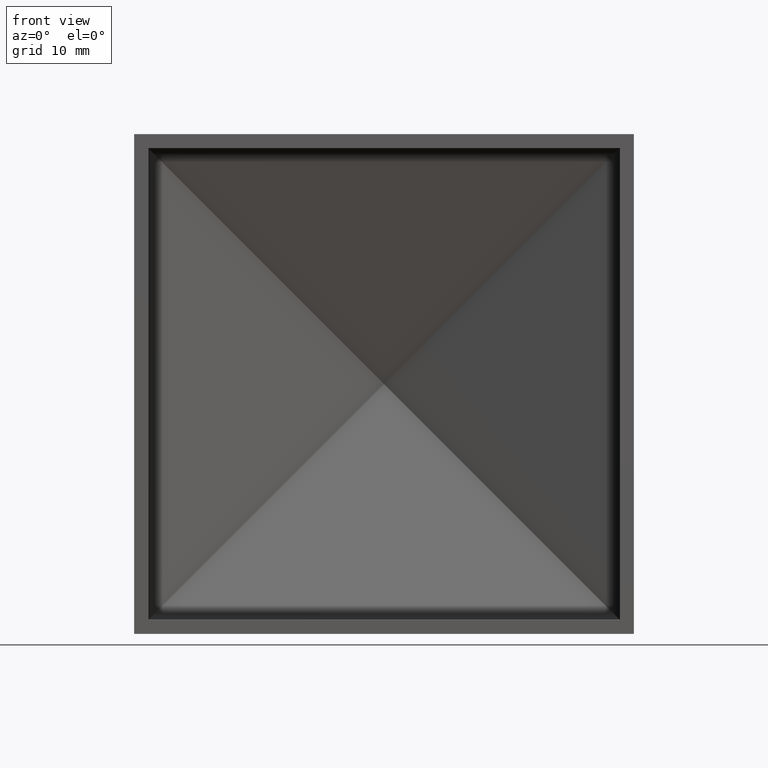
[diagram: clean part render]
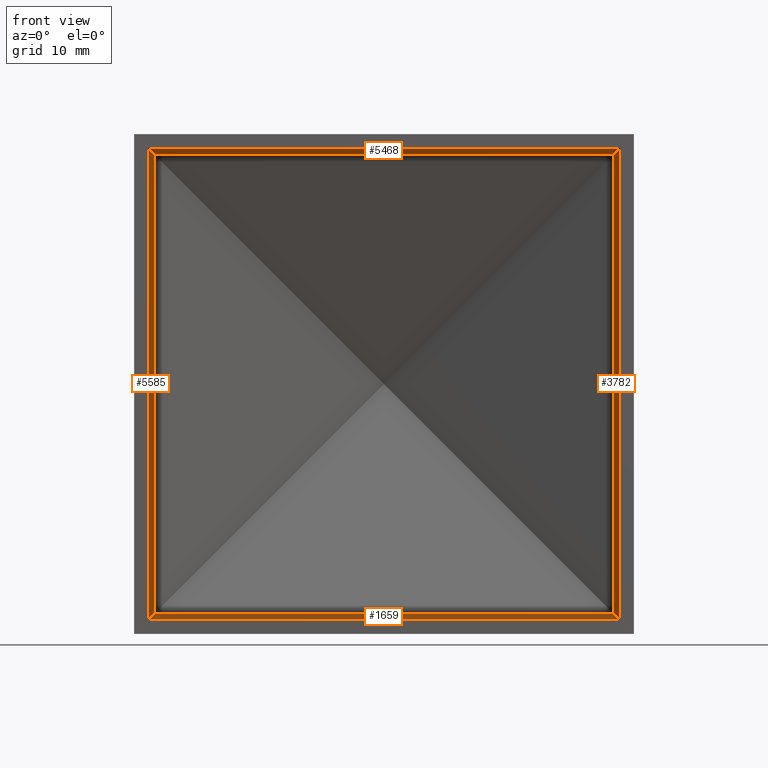
[diagram: same view with one multi-face feature highlighted, each face labeled with its STEP entity id]
A machine part, front view. The highlighted faces form ONE feature: a constant-radius fillet chain: 4 tangent blend faces with common blend radius 1 mm. The faces share edges in the B-rep.
Their STEP definitions:
[1] entity #1659 (Cylinder):
#34 = CARTESIAN_POINT ( 'NONE',  ( 24.35327022988073200, 9.207260954021602800, -24.35327022988073500 ) ) ;
#1659 = ADVANCED_FACE ( 'NONE', ( #12717 ), #8384, .F. ) ;
#2142 = EDGE_LOOP ( 'NONE', ( #11558, #5322, #9225, #8332 ) ) ;
#2817 = CARTESIAN_POINT ( 'NONE',  ( -24.35327022988072100, 9.207260954021604600, -24.35327022988071000 ) ) ;
#3187 =( BOUNDED_CURVE ( )  B_SPLINE_CURVE ( 3, ( #11447, #12555, #4276, #9355 ),
 .UNSPECIFIED., .F., .F. ) 
 B_SPLINE_CURVE_WITH_KNOTS ( ( 4, 4 ),
 ( 3.141592653589793100, 4.351324550702121200 ),
 .UNSPECIFIED. ) 
 CURVE ( )  GEOMETRIC_REPRESENTATION_ITEM ( )  RATIONAL_B_SPLINE_CURVE ( ( 1.000000000000000000, 0.8817188890797189600, 0.8817188890797189600, 1.000000000000000000 ) ) 
 REPRESENTATION_ITEM ( '' )  );
#3276 = DIRECTION ( 'NONE',  ( 0.0000000000000000000, 0.0000000000000000000, -1.000000000000000000 ) ) ;
#3362 = EDGE_CURVE ( 'NONE', #12059, #8027, #3187, .T. ) ;
#3801 = CARTESIAN_POINT ( 'NONE',  ( 24.99999999999999300, 8.271739631613602500, -25.00000000000000000 ) ) ;
#4276 = CARTESIAN_POINT ( 'NONE',  ( -24.75550417178340400, 9.055369945534446100, -24.75550417178338900 ) ) ;
#4525 = CARTESIAN_POINT ( 'NONE',  ( 25.00000000000000000, 8.701696632344857500, -25.00000000000000700 ) ) ;
#5322 = ORIENTED_EDGE ( 'NONE', *, *, #9037, .T. ) ;
#5426 = DIRECTION ( 'NONE',  ( 1.000000000000000000, 0.0000000000000000000, -0.0000000000000000000 ) ) ;
#6038 = LINE ( 'NONE', #8451, #8227 ) ;
#6303 = VERTEX_POINT ( 'NONE', #34 ) ;
#6408 = DIRECTION ( 'NONE',  ( 1.000000000000000000, -0.0000000000000000000, -4.440892098500625200E-016 ) ) ;
#6451 = CARTESIAN_POINT ( 'NONE',  ( 24.35327022988073200, 9.207260954021602800, -24.35327022988073500 ) ) ;
#6652 = AXIS2_PLACEMENT_3D ( 'NONE', #9434, #6408, #3276 ) ;
#7239 = DIRECTION ( 'NONE',  ( 1.000000000000000000, -0.0000000000000000000, -4.440892098500625200E-016 ) ) ;
#8027 = VERTEX_POINT ( 'NONE', #2817 ) ;
#8227 = VECTOR ( 'NONE', #5426, 1000.000000000000000 ) ;
#8332 = ORIENTED_EDGE ( 'NONE', *, *, #11121, .F. ) ;
#8384 = CYLINDRICAL_SURFACE ( 'NONE', #6652, 1.000000000000000900 ) ;
#8386 = CARTESIAN_POINT ( 'NONE',  ( -25.00000000000000000, 8.271739631613602500, -24.99999999999998900 ) ) ;
#8451 = CARTESIAN_POINT ( 'NONE',  ( -26.50000000000000400, 8.271739631613602500, -24.99999999999999300 ) ) ;
#9037 = EDGE_CURVE ( 'NONE', #12059, #9210, #6038, .T. ) ;
#9210 = VERTEX_POINT ( 'NONE', #3801 ) ;
#9225 = ORIENTED_EDGE ( 'NONE', *, *, #9646, .F. ) ;
#9355 = CARTESIAN_POINT ( 'NONE',  ( -24.35327022988072100, 9.207260954021604600, -24.35327022988071000 ) ) ;
#9434 = CARTESIAN_POINT ( 'NONE',  ( -26.50000000000002800, 8.271739631613602500, -23.99999999999998600 ) ) ;
#9604 = CARTESIAN_POINT ( 'NONE',  ( 24.75550417178340700, 9.055369945534446100, -24.75550417178341400 ) ) ;
#9646 = EDGE_CURVE ( 'NONE', #6303, #9210, #13183, .T. ) ;
#11121 = EDGE_CURVE ( 'NONE', #8027, #6303, #12843, .T. ) ;
#11447 = CARTESIAN_POINT ( 'NONE',  ( -25.00000000000000000, 8.271739631613602500, -24.99999999999998900 ) ) ;
#11558 = ORIENTED_EDGE ( 'NONE', *, *, #3362, .F. ) ;
#12059 = VERTEX_POINT ( 'NONE', #8386 ) ;
#12414 = CARTESIAN_POINT ( 'NONE',  ( -26.50000000000002800, 9.207260954021604600, -24.35327022988071000 ) ) ;
#12551 = CARTESIAN_POINT ( 'NONE',  ( 24.99999999999999300, 8.271739631613602500, -25.00000000000000000 ) ) ;
#12555 = CARTESIAN_POINT ( 'NONE',  ( -24.99999999999999300, 8.701696632344859200, -24.99999999999998600 ) ) ;
#12717 = FACE_OUTER_BOUND ( 'NONE', #2142, .T. ) ;
#12843 = LINE ( 'NONE', #12414, #13165 ) ;
#13165 = VECTOR ( 'NONE', #7239, 1000.000000000000000 ) ;
#13183 =( BOUNDED_CURVE ( )  B_SPLINE_CURVE ( 3, ( #6451, #9604, #4525, #12551 ),
 .UNSPECIFIED., .F., .T. ) 
 B_SPLINE_CURVE_WITH_KNOTS ( ( 4, 4 ),
 ( 1.931860756477468400, 3.141592653589793100 ),
 .UNSPECIFIED. ) 
 CURVE ( )  GEOMETRIC_REPRESENTATION_ITEM ( )  RATIONAL_B_SPLINE_CURVE ( ( 1.000000000000000000, 0.8817188890797196300, 0.8817188890797196300, 1.000000000000000000 ) ) 
 REPRESENTATION_ITEM ( '' )  );
[2] entity #3782 (Cylinder):
#34 = CARTESIAN_POINT ( 'NONE',  ( 24.35327022988073200, 9.207260954021602800, -24.35327022988073500 ) ) ;
#588 = CYLINDRICAL_SURFACE ( 'NONE', #3509, 1.000000000000000900 ) ;
#1096 = CARTESIAN_POINT ( 'NONE',  ( 25.00000000000000000, 8.271739631613602500, 24.99999999999999600 ) ) ;
#2007 = VERTEX_POINT ( 'NONE', #1096 ) ;
#2630 = CARTESIAN_POINT ( 'NONE',  ( 25.00000000000000000, 8.271739631613602500, 24.99999999999999600 ) ) ;
#2670 = DIRECTION ( 'NONE',  ( -0.0000000000000000000, -0.0000000000000000000, 1.000000000000000000 ) ) ;
#2895 = CARTESIAN_POINT ( 'NONE',  ( 24.00000000000000400, 8.271739631613602500, -26.49999999999999600 ) ) ;
#3226 = VERTEX_POINT ( 'NONE', #11307 ) ;
#3509 = AXIS2_PLACEMENT_3D ( 'NONE', #2895, #9091, #11060 ) ;
#3782 = ADVANCED_FACE ( 'NONE', ( #12216 ), #588, .F. ) ;
#3801 = CARTESIAN_POINT ( 'NONE',  ( 24.99999999999999300, 8.271739631613602500, -25.00000000000000000 ) ) ;
#3890 = EDGE_LOOP ( 'NONE', ( #6473, #7212, #10499, #7546 ) ) ;
#4525 = CARTESIAN_POINT ( 'NONE',  ( 25.00000000000000000, 8.701696632344857500, -25.00000000000000700 ) ) ;
#4918 = DIRECTION ( 'NONE',  ( 1.963837897332234900E-016, 0.0000000000000000000, 1.000000000000000000 ) ) ;
#6303 = VERTEX_POINT ( 'NONE', #34 ) ;
#6315 = CARTESIAN_POINT ( 'NONE',  ( 24.35327022988072800, 9.207260954021604600, -26.49999999999999600 ) ) ;
#6451 = CARTESIAN_POINT ( 'NONE',  ( 24.35327022988073200, 9.207260954021602800, -24.35327022988073500 ) ) ;
#6473 = ORIENTED_EDGE ( 'NONE', *, *, #9646, .T. ) ;
#6679 = CARTESIAN_POINT ( 'NONE',  ( 25.00000000000001100, 8.701696632344857500, 24.99999999999999300 ) ) ;
#7114 = VECTOR ( 'NONE', #2670, 1000.000000000000000 ) ;
#7212 = ORIENTED_EDGE ( 'NONE', *, *, #10493, .T. ) ;
#7462 = EDGE_CURVE ( 'NONE', #2007, #3226, #10394, .T. ) ;
#7546 = ORIENTED_EDGE ( 'NONE', *, *, #8749, .F. ) ;
#7903 = CARTESIAN_POINT ( 'NONE',  ( 24.35327022988073200, 9.207260954021602800, 24.35327022988072800 ) ) ;
#7931 = CARTESIAN_POINT ( 'NONE',  ( 24.99999999999998900, 8.271739631613602500, -26.49999999999999600 ) ) ;
#8749 = EDGE_CURVE ( 'NONE', #6303, #3226, #11929, .T. ) ;
#9091 = DIRECTION ( 'NONE',  ( -0.0000000000000000000, -0.0000000000000000000, 1.000000000000000000 ) ) ;
#9210 = VERTEX_POINT ( 'NONE', #3801 ) ;
#9604 = CARTESIAN_POINT ( 'NONE',  ( 24.75550417178340700, 9.055369945534446100, -24.75550417178341400 ) ) ;
#9646 = EDGE_CURVE ( 'NONE', #6303, #9210, #13183, .T. ) ;
#10007 = VECTOR ( 'NONE', #4918, 1000.000000000000000 ) ;
#10394 =( BOUNDED_CURVE ( )  B_SPLINE_CURVE ( 3, ( #2630, #6679, #11051, #7903 ),
 .UNSPECIFIED., .F., .F. ) 
 B_SPLINE_CURVE_WITH_KNOTS ( ( 4, 4 ),
 ( 0.0000000000000000000, 1.209731897112321000 ),
 .UNSPECIFIED. ) 
 CURVE ( )  GEOMETRIC_REPRESENTATION_ITEM ( )  RATIONAL_B_SPLINE_CURVE ( ( 1.000000000000000000, 0.8817188890797202900, 0.8817188890797202900, 1.000000000000000000 ) ) 
 REPRESENTATION_ITEM ( '' )  );
#10493 = EDGE_CURVE ( 'NONE', #9210, #2007, #12711, .T. ) ;
#10499 = ORIENTED_EDGE ( 'NONE', *, *, #7462, .T. ) ;
#11051 = CARTESIAN_POINT ( 'NONE',  ( 24.75550417178341800, 9.055369945534442500, 24.75550417178340000 ) ) ;
#11060 = DIRECTION ( 'NONE',  ( 1.000000000000000000, 0.0000000000000000000, 0.0000000000000000000 ) ) ;
#11307 = CARTESIAN_POINT ( 'NONE',  ( 24.35327022988073200, 9.207260954021602800, 24.35327022988072800 ) ) ;
#11929 = LINE ( 'NONE', #6315, #7114 ) ;
#12216 = FACE_OUTER_BOUND ( 'NONE', #3890, .T. ) ;
#12551 = CARTESIAN_POINT ( 'NONE',  ( 24.99999999999999300, 8.271739631613602500, -25.00000000000000000 ) ) ;
#12711 = LINE ( 'NONE', #7931, #10007 ) ;
#13183 =( BOUNDED_CURVE ( )  B_SPLINE_CURVE ( 3, ( #6451, #9604, #4525, #12551 ),
 .UNSPECIFIED., .F., .T. ) 
 B_SPLINE_CURVE_WITH_KNOTS ( ( 4, 4 ),
 ( 1.931860756477468400, 3.141592653589793100 ),
 .UNSPECIFIED. ) 
 CURVE ( )  GEOMETRIC_REPRESENTATION_ITEM ( )  RATIONAL_B_SPLINE_CURVE ( ( 1.000000000000000000, 0.8817188890797196300, 0.8817188890797196300, 1.000000000000000000 ) ) 
 REPRESENTATION_ITEM ( '' )  );
[3] entity #5468 (Cylinder):
#8 = CARTESIAN_POINT ( 'NONE',  ( -24.35327022988072100, 9.207260954021606400, 24.35327022988074200 ) ) ;
#138 = CARTESIAN_POINT ( 'NONE',  ( -24.75550417178340700, 9.055369945534446100, 24.75550417178342100 ) ) ;
#1096 = CARTESIAN_POINT ( 'NONE',  ( 25.00000000000000000, 8.271739631613602500, 24.99999999999999600 ) ) ;
#1211 = CARTESIAN_POINT ( 'NONE',  ( -24.99999999999999300, 8.271739631613602500, 25.00000000000000700 ) ) ;
#1620 = DIRECTION ( 'NONE',  ( 1.000000000000000000, -0.0000000000000000000, -4.440892098500625200E-016 ) ) ;
#1686 = FACE_OUTER_BOUND ( 'NONE', #3450, .T. ) ;
#1976 = DIRECTION ( 'NONE',  ( 0.0000000000000000000, 0.0000000000000000000, -1.000000000000000000 ) ) ;
#2007 = VERTEX_POINT ( 'NONE', #1096 ) ;
#2567 = CARTESIAN_POINT ( 'NONE',  ( -26.50000000000001400, 8.271739631613602500, 25.00000000000001400 ) ) ;
#2630 = CARTESIAN_POINT ( 'NONE',  ( 25.00000000000000000, 8.271739631613602500, 24.99999999999999600 ) ) ;
#3226 = VERTEX_POINT ( 'NONE', #11307 ) ;
#3404 = ORIENTED_EDGE ( 'NONE', *, *, #10844, .F. ) ;
#3450 = EDGE_LOOP ( 'NONE', ( #3404, #8458, #6288, #10262 ) ) ;
#4039 = EDGE_CURVE ( 'NONE', #6434, #2007, #9495, .T. ) ;
#4199 = DIRECTION ( 'NONE',  ( 1.000000000000000000, -0.0000000000000000000, -4.440892098500625200E-016 ) ) ;
#4539 = CYLINDRICAL_SURFACE ( 'NONE', #7595, 1.000000000000000900 ) ;
#4655 = CARTESIAN_POINT ( 'NONE',  ( -24.35327022988072100, 9.207260954021606400, 24.35327022988074200 ) ) ;
#4977 = VERTEX_POINT ( 'NONE', #4655 ) ;
#5468 = ADVANCED_FACE ( 'NONE', ( #1686 ), #4539, .F. ) ;
#6126 = CARTESIAN_POINT ( 'NONE',  ( -26.50000000000001400, 8.271739631613602500, 24.00000000000001400 ) ) ;
#6288 = ORIENTED_EDGE ( 'NONE', *, *, #7462, .F. ) ;
#6434 = VERTEX_POINT ( 'NONE', #1211 ) ;
#6564 = VECTOR ( 'NONE', #9187, 1000.000000000000000 ) ;
#6679 = CARTESIAN_POINT ( 'NONE',  ( 25.00000000000001100, 8.701696632344857500, 24.99999999999999300 ) ) ;
#6782 = VECTOR ( 'NONE', #1620, 1000.000000000000000 ) ;
#7029 = CARTESIAN_POINT ( 'NONE',  ( -24.99999999999999600, 8.701696632344859200, 25.00000000000001800 ) ) ;
#7462 = EDGE_CURVE ( 'NONE', #2007, #3226, #10394, .T. ) ;
#7595 = AXIS2_PLACEMENT_3D ( 'NONE', #6126, #4199, #1976 ) ;
#7903 = CARTESIAN_POINT ( 'NONE',  ( 24.35327022988073200, 9.207260954021602800, 24.35327022988072800 ) ) ;
#8240 = CARTESIAN_POINT ( 'NONE',  ( -24.99999999999999300, 8.271739631613602500, 25.00000000000000700 ) ) ;
#8458 = ORIENTED_EDGE ( 'NONE', *, *, #9988, .T. ) ;
#9187 = DIRECTION ( 'NONE',  ( 1.000000000000000000, -1.467678568125111800E-016, -5.542226913845241600E-017 ) ) ;
#9250 =( BOUNDED_CURVE ( )  B_SPLINE_CURVE ( 3, ( #8, #138, #7029, #8240 ),
 .UNSPECIFIED., .F., .T. ) 
 B_SPLINE_CURVE_WITH_KNOTS ( ( 4, 4 ),
 ( 5.073453410067259000, 6.283185307179586200 ),
 .UNSPECIFIED. ) 
 CURVE ( )  GEOMETRIC_REPRESENTATION_ITEM ( )  RATIONAL_B_SPLINE_CURVE ( ( 1.000000000000000000, 0.8817188890797190700, 0.8817188890797190700, 1.000000000000000000 ) ) 
 REPRESENTATION_ITEM ( '' )  );
#9432 = LINE ( 'NONE', #11188, #6564 ) ;
#9495 = LINE ( 'NONE', #2567, #6782 ) ;
#9988 = EDGE_CURVE ( 'NONE', #4977, #3226, #9432, .T. ) ;
#10262 = ORIENTED_EDGE ( 'NONE', *, *, #4039, .F. ) ;
#10394 =( BOUNDED_CURVE ( )  B_SPLINE_CURVE ( 3, ( #2630, #6679, #11051, #7903 ),
 .UNSPECIFIED., .F., .F. ) 
 B_SPLINE_CURVE_WITH_KNOTS ( ( 4, 4 ),
 ( 0.0000000000000000000, 1.209731897112321000 ),
 .UNSPECIFIED. ) 
 CURVE ( )  GEOMETRIC_REPRESENTATION_ITEM ( )  RATIONAL_B_SPLINE_CURVE ( ( 1.000000000000000000, 0.8817188890797202900, 0.8817188890797202900, 1.000000000000000000 ) ) 
 REPRESENTATION_ITEM ( '' )  );
#10844 = EDGE_CURVE ( 'NONE', #4977, #6434, #9250, .T. ) ;
#11051 = CARTESIAN_POINT ( 'NONE',  ( 24.75550417178341800, 9.055369945534442500, 24.75550417178340000 ) ) ;
#11188 = CARTESIAN_POINT ( 'NONE',  ( -26.50000000000002100, 9.207260954021606400, 24.35327022988073900 ) ) ;
#11307 = CARTESIAN_POINT ( 'NONE',  ( 24.35327022988073200, 9.207260954021602800, 24.35327022988072800 ) ) ;
[4] entity #5585 (Cylinder):
#8 = CARTESIAN_POINT ( 'NONE',  ( -24.35327022988072100, 9.207260954021606400, 24.35327022988074200 ) ) ;
#138 = CARTESIAN_POINT ( 'NONE',  ( -24.75550417178340700, 9.055369945534446100, 24.75550417178342100 ) ) ;
#183 = EDGE_CURVE ( 'NONE', #12059, #6434, #3238, .T. ) ;
#311 = LINE ( 'NONE', #8499, #1577 ) ;
#541 = CARTESIAN_POINT ( 'NONE',  ( -24.99999999999999600, 8.271739631613602500, -26.49999999999999600 ) ) ;
#1211 = CARTESIAN_POINT ( 'NONE',  ( -24.99999999999999300, 8.271739631613602500, 25.00000000000000700 ) ) ;
#1217 = CYLINDRICAL_SURFACE ( 'NONE', #12152, 1.000000000000000900 ) ;
#1577 = VECTOR ( 'NONE', #6478, 1000.000000000000000 ) ;
#2817 = CARTESIAN_POINT ( 'NONE',  ( -24.35327022988072100, 9.207260954021604600, -24.35327022988071000 ) ) ;
#3187 =( BOUNDED_CURVE ( )  B_SPLINE_CURVE ( 3, ( #11447, #12555, #4276, #9355 ),
 .UNSPECIFIED., .F., .F. ) 
 B_SPLINE_CURVE_WITH_KNOTS ( ( 4, 4 ),
 ( 3.141592653589793100, 4.351324550702121200 ),
 .UNSPECIFIED. ) 
 CURVE ( )  GEOMETRIC_REPRESENTATION_ITEM ( )  RATIONAL_B_SPLINE_CURVE ( ( 1.000000000000000000, 0.8817188890797189600, 0.8817188890797189600, 1.000000000000000000 ) ) 
 REPRESENTATION_ITEM ( '' )  );
#3238 = LINE ( 'NONE', #541, #11383 ) ;
#3362 = EDGE_CURVE ( 'NONE', #12059, #8027, #3187, .T. ) ;
#3691 = DIRECTION ( 'NONE',  ( -0.0000000000000000000, -0.0000000000000000000, 1.000000000000000000 ) ) ;
#4276 = CARTESIAN_POINT ( 'NONE',  ( -24.75550417178340400, 9.055369945534446100, -24.75550417178338900 ) ) ;
#4366 = ORIENTED_EDGE ( 'NONE', *, *, #9107, .T. ) ;
#4655 = CARTESIAN_POINT ( 'NONE',  ( -24.35327022988072100, 9.207260954021606400, 24.35327022988074200 ) ) ;
#4977 = VERTEX_POINT ( 'NONE', #4655 ) ;
#5333 = ORIENTED_EDGE ( 'NONE', *, *, #10844, .T. ) ;
#5585 = ADVANCED_FACE ( 'NONE', ( #5988 ), #1217, .F. ) ;
#5988 = FACE_OUTER_BOUND ( 'NONE', #6703, .T. ) ;
#6434 = VERTEX_POINT ( 'NONE', #1211 ) ;
#6478 = DIRECTION ( 'NONE',  ( -0.0000000000000000000, 0.0000000000000000000, 1.000000000000000000 ) ) ;
#6703 = EDGE_LOOP ( 'NONE', ( #10066, #4366, #5333, #12027 ) ) ;
#7029 = CARTESIAN_POINT ( 'NONE',  ( -24.99999999999999600, 8.701696632344859200, 25.00000000000001800 ) ) ;
#7850 = DIRECTION ( 'NONE',  ( 1.000000000000000000, 0.0000000000000000000, 0.0000000000000000000 ) ) ;
#8027 = VERTEX_POINT ( 'NONE', #2817 ) ;
#8240 = CARTESIAN_POINT ( 'NONE',  ( -24.99999999999999300, 8.271739631613602500, 25.00000000000000700 ) ) ;
#8303 = DIRECTION ( 'NONE',  ( -0.0000000000000000000, -0.0000000000000000000, 1.000000000000000000 ) ) ;
#8386 = CARTESIAN_POINT ( 'NONE',  ( -25.00000000000000000, 8.271739631613602500, -24.99999999999998900 ) ) ;
#8499 = CARTESIAN_POINT ( 'NONE',  ( -24.35327022988072100, 9.207260954021604600, -26.49999999999999600 ) ) ;
#9107 = EDGE_CURVE ( 'NONE', #8027, #4977, #311, .T. ) ;
#9250 =( BOUNDED_CURVE ( )  B_SPLINE_CURVE ( 3, ( #8, #138, #7029, #8240 ),
 .UNSPECIFIED., .F., .T. ) 
 B_SPLINE_CURVE_WITH_KNOTS ( ( 4, 4 ),
 ( 5.073453410067259000, 6.283185307179586200 ),
 .UNSPECIFIED. ) 
 CURVE ( )  GEOMETRIC_REPRESENTATION_ITEM ( )  RATIONAL_B_SPLINE_CURVE ( ( 1.000000000000000000, 0.8817188890797190700, 0.8817188890797190700, 1.000000000000000000 ) ) 
 REPRESENTATION_ITEM ( '' )  );
#9355 = CARTESIAN_POINT ( 'NONE',  ( -24.35327022988072100, 9.207260954021604600, -24.35327022988071000 ) ) ;
#10066 = ORIENTED_EDGE ( 'NONE', *, *, #3362, .T. ) ;
#10844 = EDGE_CURVE ( 'NONE', #4977, #6434, #9250, .T. ) ;
#11383 = VECTOR ( 'NONE', #8303, 1000.000000000000000 ) ;
#11447 = CARTESIAN_POINT ( 'NONE',  ( -25.00000000000000000, 8.271739631613602500, -24.99999999999998900 ) ) ;
#11954 = CARTESIAN_POINT ( 'NONE',  ( -23.99999999999999600, 8.271739631613602500, -26.49999999999999600 ) ) ;
#12027 = ORIENTED_EDGE ( 'NONE', *, *, #183, .F. ) ;
#12059 = VERTEX_POINT ( 'NONE', #8386 ) ;
#12152 = AXIS2_PLACEMENT_3D ( 'NONE', #11954, #3691, #7850 ) ;
#12555 = CARTESIAN_POINT ( 'NONE',  ( -24.99999999999999300, 8.701696632344859200, -24.99999999999998600 ) ) ;